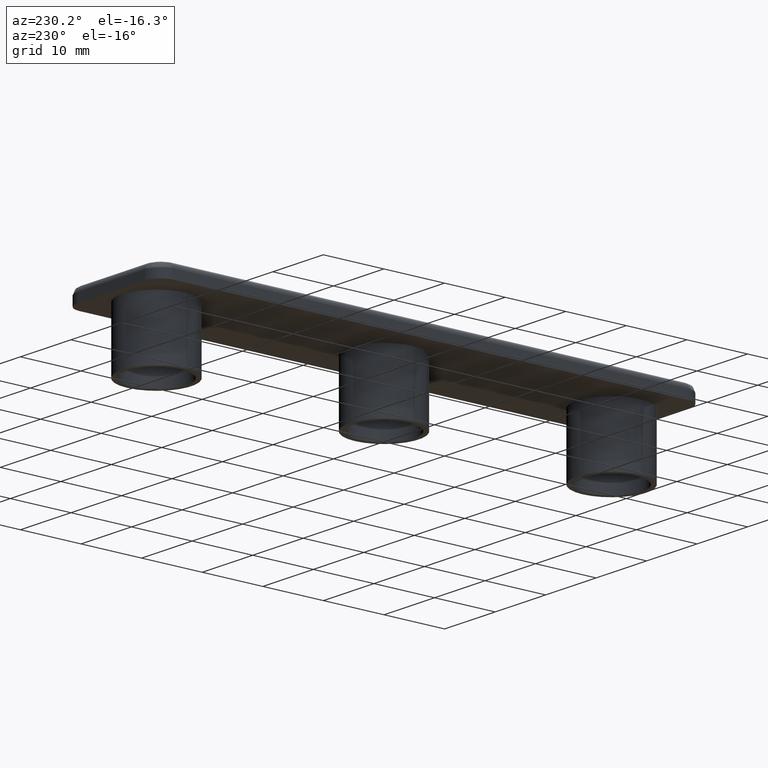
[diagram: clean part render]
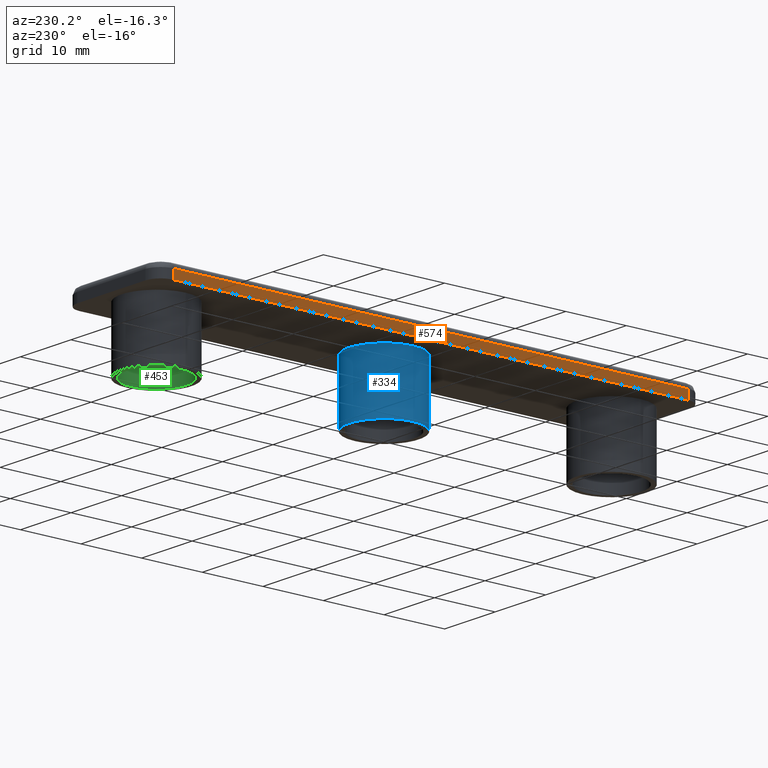
[diagram: same view with three faces highlighted in distinct colors, each labeled with its STEP entity id]
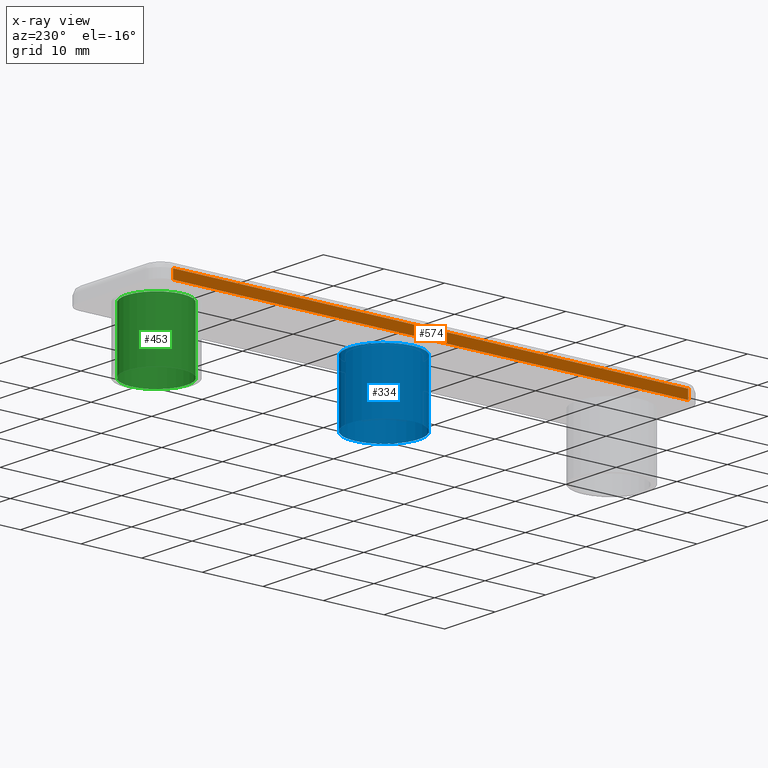
[diagram: x-ray of the same camera — body ghosted, the three highlighted faces saturated]
A machine part, auxiliary view with three faces highlighted in distinct colors.
The next image is the same camera in x-ray (body ghosted, the three faces saturated) — at least one of them is partly hidden behind the body in this view.
Their STEP definitions:

[orange] entity #574 — the highlighted planar face has unit normal (1, 0, 0).
#51=CARTESIAN_POINT('',(-9.249954999962938,-42.499954999830152,-1.132793E-015));
#52=VERTEX_POINT('',#51);
#60=CARTESIAN_POINT('',(-9.249954999962938,42.499999999829924,-1.132793E-015));
#61=VERTEX_POINT('',#60);
#62=CARTESIAN_POINT('',(-9.249954999962938,-42.499954999830152,-1.132793E-015));
#63=DIRECTION('',(0.0,1.0,0.0));
#64=VECTOR('',#63,84.999954999660019);
#65=LINE('',#62,#64);
#66=EDGE_CURVE('',#52,#61,#65,.T.);
#544=CARTESIAN_POINT('',(-9.249954999962938,-42.499954999830152,-1.132793E-015));
#545=DIRECTION('',(1.0,0.0,0.0));
#546=DIRECTION('',(0.0,1.0,0.0));
#547=AXIS2_PLACEMENT_3D('',#544,#545,#546);
#548=PLANE('',#547);
#549=CARTESIAN_POINT('',(-9.249954999962943,-42.499954999830152,1.499999999999999));
#550=VERTEX_POINT('',#549);
#551=CARTESIAN_POINT('',(-9.249954999962938,-42.499954999830152,-1.132793E-015));
#552=DIRECTION('',(0.0,0.0,1.0));
#553=VECTOR('',#552,1.500000000000000);
#554=LINE('',#551,#553);
#555=EDGE_CURVE('',#52,#550,#554,.T.);
#556=ORIENTED_EDGE('',*,*,#555,.T.);
#557=CARTESIAN_POINT('',(-9.249954999962943,42.499999999829924,1.499999999999999));
#558=VERTEX_POINT('',#557);
#559=CARTESIAN_POINT('',(-9.249954999962938,-42.499954999830152,1.499999999999999));
#560=DIRECTION('',(0.0,1.0,0.0));
#561=VECTOR('',#560,84.999954999660076);
#562=LINE('',#559,#561);
#563=EDGE_CURVE('',#550,#558,#562,.T.);
#564=ORIENTED_EDGE('',*,*,#563,.T.);
#565=CARTESIAN_POINT('',(-9.249954999962938,42.499999999829924,-1.132793E-015));
#566=DIRECTION('',(0.0,0.0,1.0));
#567=VECTOR('',#566,1.500000000000000);
#568=LINE('',#565,#567);
#569=EDGE_CURVE('',#61,#558,#568,.T.);
#570=ORIENTED_EDGE('',*,*,#569,.F.);
#571=ORIENTED_EDGE('',*,*,#66,.F.);
#572=EDGE_LOOP('',(#556,#564,#570,#571));
#573=FACE_OUTER_BOUND('',#572,.T.);
#574=ADVANCED_FACE('',(#573),#548,.F.);

[blue] entity #334 — the highlighted cylindrical surface (bore or boss wall) has radius 5.75 mm, axis along (0, 0, -1).
#97=CARTESIAN_POINT('',(5.749999999977001,0.0,7.041719E-016));
#98=VERTEX_POINT('',#97);
#99=CARTESIAN_POINT('',(-5.749999999976808,0.0,-7.041719E-016));
#100=VERTEX_POINT('',#99);
#101=CARTESIAN_POINT('',(0.0,0.0,0.0));
#102=DIRECTION('',(1.224647E-016,0.0,-1.0));
#103=DIRECTION('',(-1.0,0.0,-1.224647E-016));
#104=AXIS2_PLACEMENT_3D('',#101,#102,#103);
#105=CIRCLE('',#104,5.749999999977001);
#106=EDGE_CURVE('',#98,#100,#105,.T.);
#108=CARTESIAN_POINT('',(0.0,0.0,0.0));
#109=DIRECTION('',(1.224647E-016,0.0,-1.0));
#110=DIRECTION('',(-1.0,0.0,-1.224647E-016));
#111=AXIS2_PLACEMENT_3D('',#108,#109,#110);
#112=CIRCLE('',#111,5.749999999977001);
#113=EDGE_CURVE('',#100,#98,#112,.T.);
#300=CARTESIAN_POINT('',(0.0,0.0,0.0));
#301=DIRECTION('',(1.224647E-016,0.0,-1.0));
#302=DIRECTION('',(-1.0,0.0,-1.224647E-016));
#303=AXIS2_PLACEMENT_3D('',#300,#301,#302);
#304=CYLINDRICAL_SURFACE('',#303,5.749999999977001);
#305=CARTESIAN_POINT('',(5.749999999977002,0.0,-10.0));
#306=VERTEX_POINT('',#305);
#307=CARTESIAN_POINT('',(-5.749999999976807,0.0,-10.0));
#308=VERTEX_POINT('',#307);
#309=CARTESIAN_POINT('',(1.224647E-015,0.0,-10.0));
#310=DIRECTION('',(1.224647E-016,0.0,-1.0));
#311=DIRECTION('',(-1.0,0.0,-1.224647E-016));
#312=AXIS2_PLACEMENT_3D('',#309,#310,#311);
#313=CIRCLE('',#312,5.749999999977001);
#314=EDGE_CURVE('',#306,#308,#313,.T.);
#315=ORIENTED_EDGE('',*,*,#314,.F.);
#316=CARTESIAN_POINT('',(1.224647E-015,0.0,-10.0));
#317=DIRECTION('',(1.224647E-016,0.0,-1.0));
#318=DIRECTION('',(-1.0,0.0,-1.224647E-016));
#319=AXIS2_PLACEMENT_3D('',#316,#317,#318);
#320=CIRCLE('',#319,5.749999999977001);
#321=EDGE_CURVE('',#308,#306,#320,.T.);
#322=ORIENTED_EDGE('',*,*,#321,.F.);
#323=CARTESIAN_POINT('',(-5.749999999976808,0.0,-7.041719E-016));
#324=DIRECTION('',(0.0,0.0,-1.0));
#325=VECTOR('',#324,10.0);
#326=LINE('',#323,#325);
#327=EDGE_CURVE('',#100,#308,#326,.T.);
#328=ORIENTED_EDGE('',*,*,#327,.F.);
#329=ORIENTED_EDGE('',*,*,#113,.T.);
#330=ORIENTED_EDGE('',*,*,#106,.T.);
#331=ORIENTED_EDGE('',*,*,#327,.T.);
#332=EDGE_LOOP('',(#315,#322,#328,#329,#330,#331));
#333=FACE_OUTER_BOUND('',#332,.T.);
#334=ADVANCED_FACE('',(#333),#304,.T.);

[green] entity #453 — the highlighted cylindrical surface (bore or boss wall) has radius 5 mm, axis along (-0, 0, 1).
#143=CARTESIAN_POINT('',(4.999999999980001,37.549999999849661,6.123234E-016));
#144=VERTEX_POINT('',#143);
#145=CARTESIAN_POINT('',(-4.999999999979991,37.549999999849661,-6.123234E-016));
#146=VERTEX_POINT('',#145);
#147=CARTESIAN_POINT('',(0.0,37.549999999849661,0.0));
#148=DIRECTION('',(-1.224647E-016,0.0,1.0));
#149=DIRECTION('',(-1.0,0.0,-1.224647E-016));
#150=AXIS2_PLACEMENT_3D('',#147,#148,#149);
#151=CIRCLE('',#150,4.999999999980001);
#152=EDGE_CURVE('',#144,#146,#151,.T.);
#154=CARTESIAN_POINT('',(0.0,37.549999999849661,0.0));
#155=DIRECTION('',(-1.224647E-016,0.0,1.0));
#156=DIRECTION('',(-1.0,0.0,-1.224647E-016));
#157=AXIS2_PLACEMENT_3D('',#154,#155,#156);
#158=CIRCLE('',#157,4.999999999980001);
#159=EDGE_CURVE('',#146,#144,#158,.T.);
#419=CARTESIAN_POINT('',(0.0,37.549999999849661,0.0));
#420=DIRECTION('',(-1.224647E-016,0.0,1.0));
#421=DIRECTION('',(-1.0,-2.449294E-016,-1.224647E-016));
#422=AXIS2_PLACEMENT_3D('',#419,#420,#421);
#423=CYLINDRICAL_SURFACE('',#422,4.999999999980001);
#424=CARTESIAN_POINT('',(4.999999999980002,37.549999999849661,-10.0));
#425=VERTEX_POINT('',#424);
#426=CARTESIAN_POINT('',(-4.999999999979990,37.549999999849661,-10.0));
#427=VERTEX_POINT('',#426);
#428=CARTESIAN_POINT('',(1.224647E-015,37.549999999849661,-10.0));
#429=DIRECTION('',(-1.224647E-016,0.0,1.0));
#430=DIRECTION('',(-1.0,0.0,-1.224647E-016));
#431=AXIS2_PLACEMENT_3D('',#428,#429,#430);
#432=CIRCLE('',#431,4.999999999980001);
#433=EDGE_CURVE('',#425,#427,#432,.T.);
#434=ORIENTED_EDGE('',*,*,#433,.F.);
#435=CARTESIAN_POINT('',(1.224647E-015,37.549999999849661,-10.0));
#436=DIRECTION('',(-1.224647E-016,0.0,1.0));
#437=DIRECTION('',(-1.0,0.0,-1.224647E-016));
#438=AXIS2_PLACEMENT_3D('',#435,#436,#437);
#439=CIRCLE('',#438,4.999999999980001);
#440=EDGE_CURVE('',#427,#425,#439,.T.);
#441=ORIENTED_EDGE('',*,*,#440,.F.);
#442=CARTESIAN_POINT('',(-4.999999999979991,37.549999999849661,-6.123234E-016));
#443=DIRECTION('',(0.0,0.0,-1.0));
#444=VECTOR('',#443,10.0);
#445=LINE('',#442,#444);
#446=EDGE_CURVE('',#146,#427,#445,.T.);
#447=ORIENTED_EDGE('',*,*,#446,.F.);
#448=ORIENTED_EDGE('',*,*,#159,.T.);
#449=ORIENTED_EDGE('',*,*,#152,.T.);
#450=ORIENTED_EDGE('',*,*,#446,.T.);
#451=EDGE_LOOP('',(#434,#441,#447,#448,#449,#450));
#452=FACE_OUTER_BOUND('',#451,.T.);
#453=ADVANCED_FACE('',(#452),#423,.F.);